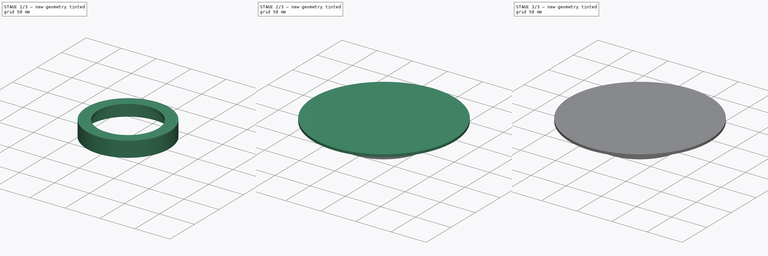
[diagram: build sequence overview — one tinted view per stage of 3, left to right]
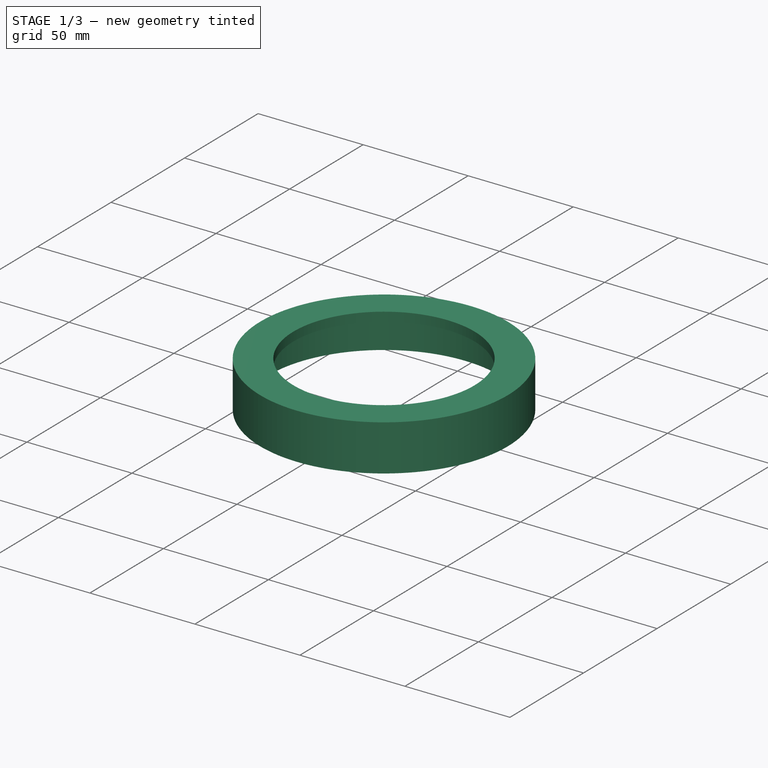
[diagram: stage 1 of 3 — iso view after this stage's code; geometry added in this stage tinted green]
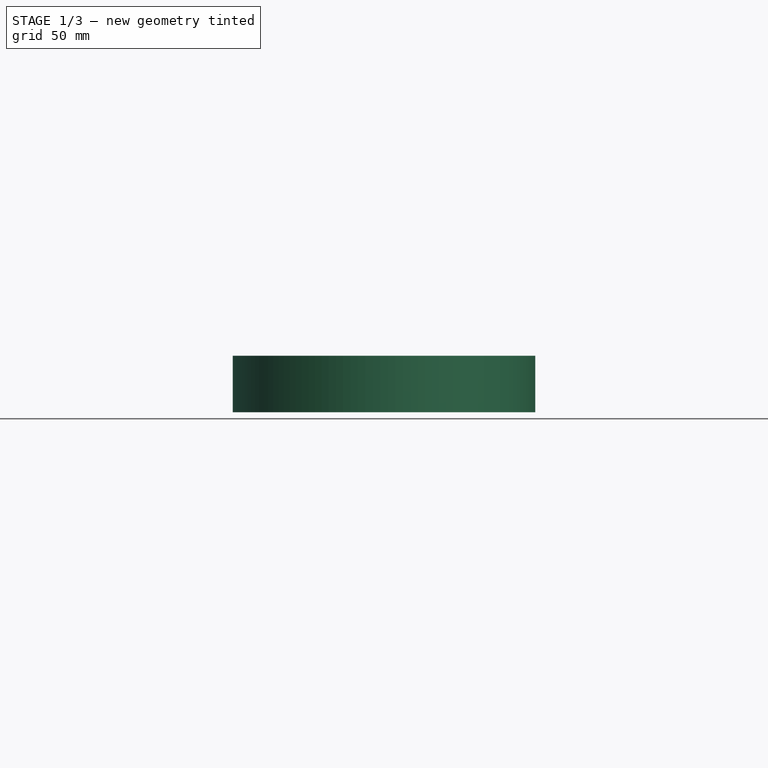
[diagram: stage 1 of 3 — front view after this stage's code; geometry added in this stage tinted green]
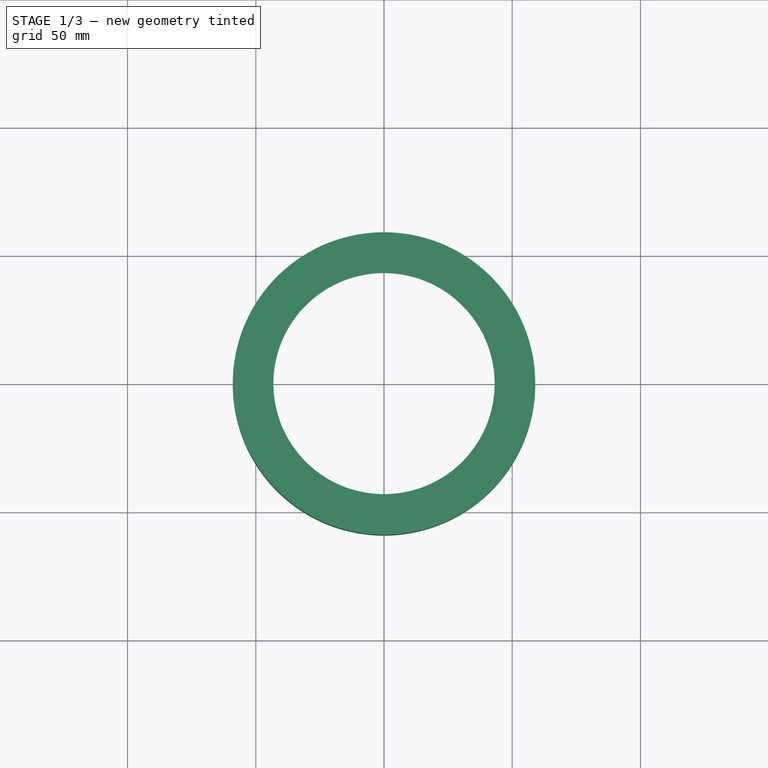
[diagram: stage 1 of 3 — top view after this stage's code; geometry added in this stage tinted green]
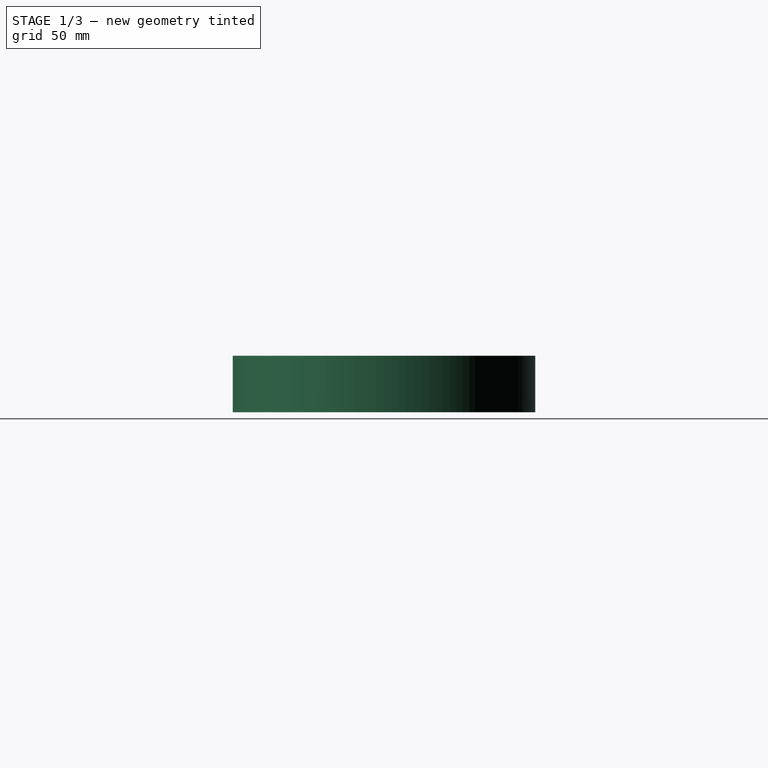
[diagram: stage 1 of 3 — right view after this stage's code; geometry added in this stage tinted green]
FCSTD DOCUMENT  (FreeCAD 1.1R20260414 (Git shallow))
Label: Вращающаяся платформа(верх)
License: All rights reserved
LicenseURL: https://en.wikipedia.org/wiki/All_rights_reserved
objects: Sketcher::SketchObject×7, PartDesign::Pad×3, App::Point×2, PartDesign::Revolution×2, PartDesign::SubShapeBinder×2, PartDesign::Body×2, PartDesign::PolarPattern×2, Part::DatumPlane×1
note: 37 computed .brp shape members not serialized (recipe doc carries the construction recipe); baked Part::Feature solids carry a one-line shape summary decoded from their .brp

FEATURE [App::Point] Origin001  label="Начало координат"
  Role = Origin
FEATURE [Sketcher::SketchObject] Sketch
  ArcFitTolerance = 1e-06
  AttachmentSupport = -> [Origin]
  ExternalTypes = [0]
  FullyConstrained = false
  MakeInternals = false
  MapMode = 5
  Placement = pos=(0,0,0) rot=(1,0,0;1.5708rad)
  _ExternalGeoVersion = 0
  expr: Constraints[7] = 60 / 2
  expr: Constraints[8] = 110 / 2
  sketch-geometry (13):
    g0: LineSegment StartX=30 StartY=22 StartZ=0 EndX=30 EndY=0 EndZ=0
    g1: LineSegment StartX=30 StartY=0 StartZ=0 EndX=36.7998 EndY=0 EndZ=0
    g2: LineSegment StartX=55 StartY=0 StartZ=0 EndX=55 EndY=22 EndZ=0
    g3: LineSegment StartX=55 StartY=22 StartZ=0 EndX=49.5 EndY=22 EndZ=0
    g4: LineSegment StartX=36.7998 StartY=22 StartZ=0 EndX=37.1499 EndY=21.5 EndZ=0
    g5: LineSegment StartX=37.1499 StartY=21.5 StartZ=0 EndX=49.1499 EndY=21.5 EndZ=0
    g6: LineSegment StartX=49.1499 StartY=21.5 StartZ=0 EndX=49.5 EndY=22 EndZ=0
    g7: LineSegment StartX=36.7998 StartY=0 StartZ=0 EndX=37.1499 EndY=0.5 EndZ=0
    g8: LineSegment StartX=37.1499 StartY=0.5 StartZ=0 EndX=49.1499 EndY=0.5 EndZ=0
    g9: LineSegment StartX=49.1499 StartY=0.5 StartZ=0 EndX=49.5 EndY=0 EndZ=0
    g10: LineSegment [constr] StartX=35.4638 StartY=11 StartZ=0 EndX=50.0673 EndY=11 EndZ=0
    g11: LineSegment StartX=36.7998 StartY=22 StartZ=0 EndX=30 EndY=22 EndZ=0
    g12: LineSegment StartX=49.5 StartY=0 StartZ=0 EndX=55 EndY=0 EndZ=0
  constraints (34):
    c: Coincident(g0,g1)
    c: Coincident(g12,g2)
    c: Coincident(g2,g3)
    c: Coincident(g11,g0)
    c: Vertical(g0)
    c: Vertical(g2)
    c: DistanceY(g2,g2) = 22
    c: Distance(g-1,g0) = 30
    c: DistanceX(g-1,g2) = 55
    c: PointOnObject(g0,g-1)
    c: Coincident(g4,g5)
    c: Horizontal(g5)
    c: Coincident(g5,g6)
    c: Coincident(g7,g8)
    c: Horizontal(g8)
    c: Coincident(g8,g9)
    c: Symmetric(g4,g7,g10)
    c: Symmetric(g8,g5,g10)
    c: DistanceY(g4,g4) = 0.5
    c: Equal(g4,g7)
    c: Parallel(g6,g7)
    c: Parallel(g9,g4)
    c: DistanceX(g6,g2) = 5.5
    c: DistanceX(g5,g5) = 12
    c: Equal(g9,g4)
    c: Angle(g6,g5) = 2.18166
    c: Horizontal(g3)
    c: Horizontal(g11)
    c: Coincident(g4,g11)
    c: Coincident(g6,g3)
    c: Horizontal(g1)
    c: Horizontal(g12)
    c: Coincident(g7,g1)
    c: Coincident(g9,g12)
FEATURE [PartDesign::Revolution] Revolution
  Angle = 360
  Angle2 = 60
  Axis = (0,2e-16,1)
  Base = (0,0,0)
  FuseOrder = 0
  Profile = -> Sketch
  ReferenceAxis = -> Sketch [V_Axis]
  Refine = true
  Reversed = true
  Suppressed = false
  Type = 0
FEATURE [App::Point] Origin003  label="Начало координат002"
  Role = Origin
FEATURE [PartDesign::SubShapeBinder] Binder
  BindCopyOnChange = 0
  BindMode = 0
  ClaimChildren = false
  Context = -> Body001 [Binder.]
  Fuse = false
  MakeFace = true
  OffsetFill = false
  OffsetIntersection = false
  OffsetJoinType = 0
  OffsetOpenResult = false
  PartialLoad = false
  Refine = true
  Relative = true
  Support = -> [Body[Revolution.Edge15,Revolution.Edge14,Revolution.Edge12,Revolution.Edge11]]
  _Version = 2
FEATURE [PartDesign::SubShapeBinder] Binder001
  BindCopyOnChange = 0
  BindMode = 0
  ClaimChildren = false
  Context = -> Body001 [Binder001.]
  Fuse = false
  MakeFace = true
  OffsetFill = false
  OffsetIntersection = false
  OffsetJoinType = 0
  OffsetOpenResult = false
  PartialLoad = false
  Refine = true
  Relative = true
  Support = -> [Body[Revolution.Edge17,Revolution.Edge1]]
  _Version = 2
FEATURE [Sketcher::SketchObject] Sketch001
  ArcFitTolerance = 1e-06
  AttachmentSupport = -> [Origin002]
  ExternalGeometry = -> [Binder,Binder001]
  ExternalTypes = [0,0,0,0,0]
  FullyConstrained = true
  MakeInternals = false
  MapMode = 5
  Placement = pos=(0,0,0) rot=(1,0,0;1.5708rad)
  _ExternalGeoVersion = 0
  sketch-geometry (9):
    g0: LineSegment StartX=55 StartY=4 StartZ=0 EndX=55 EndY=22 EndZ=0
    g1: LineSegment StartX=55 StartY=22 StartZ=0 EndX=49.5 EndY=22 EndZ=0
    g2: LineSegment StartX=49.5 StartY=22 StartZ=0 EndX=49.3249 EndY=21.75 EndZ=0
    g3: LineSegment StartX=49.3249 StartY=21.75 StartZ=0 EndX=43.1499 EndY=21.75 EndZ=0
    g4: GeomPoint [constr] X=43.1499 Y=22 Z=0
    g5: LineSegment StartX=55 StartY=4 StartZ=0 EndX=59 EndY=4 EndZ=0
    g6: LineSegment StartX=59 StartY=4 StartZ=0 EndX=59 EndY=26 EndZ=0
    g7: LineSegment StartX=43.1499 StartY=21.75 StartZ=0 EndX=43.1499 EndY=26 EndZ=0
    g8: LineSegment StartX=43.1499 StartY=26 StartZ=0 EndX=59 EndY=26 EndZ=0
  constraints (23):
    c: Coincident(g0,g-5)
    c: Vertical(g0)
    c: Coincident(g0,g1)
    c: Coincident(g1,g-4)
    c: Coincident(g1,g2)
    c: DistanceY(g-3,g2) = 0.25
    c: Angle(g2,g-3) = 2.18166
    c: Coincident(g2,g3)
    c: Horizontal(g3)
    c: Vertical(g3,g4)
    c: Symmetric(g-7,g1,g4)
    c: DistanceY(g-6,g0) = 4
    c: Coincident(g0,g5)
    c: Coincident(g5,g6)
    c: Vertical(g6)
    c: Coincident(g3,g7)
    c: Vertical(g7)
    c: Coincident(g7,g8)
    c: Horizontal(g8)
    c: DistanceX(g5,g5) = 4
    c: Horizontal(g5)
    c: Coincident(g6,g8)
    c: DistanceY(g0,g6) = 4
FEATURE [PartDesign::Revolution] Revolution001
  Angle = 360
  Angle2 = 60
  Axis = (0,2e-16,1)
  Base = (0,0,0)
  FuseOrder = 0
  Profile = -> Sketch001
  ReferenceAxis = -> Sketch001 [V_Axis]
  Refine = true
  Reversed = true
  Suppressed = false
  Type = 0
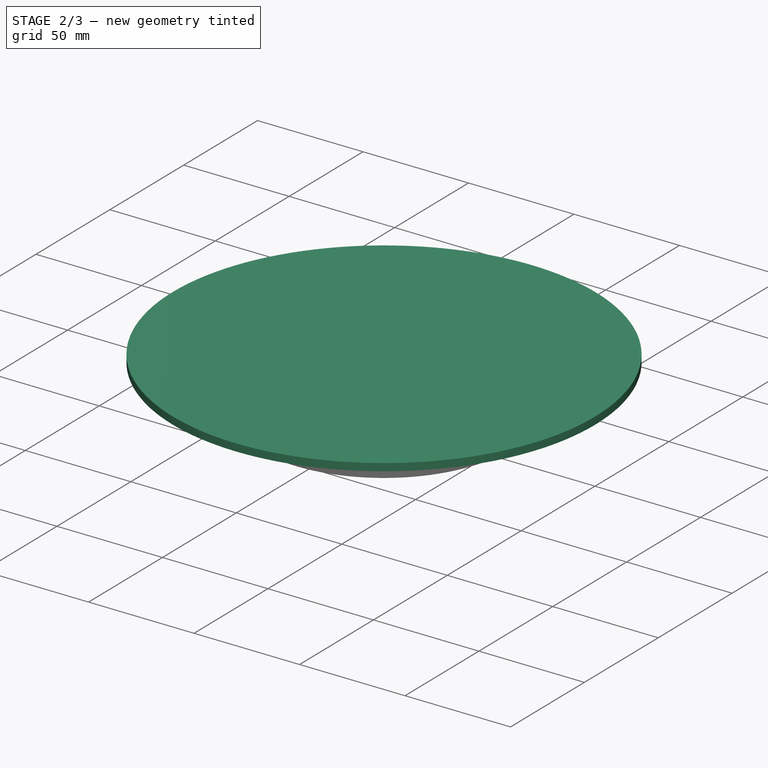
[diagram: stage 2 of 3 — iso view after this stage's code; geometry added in this stage tinted green]
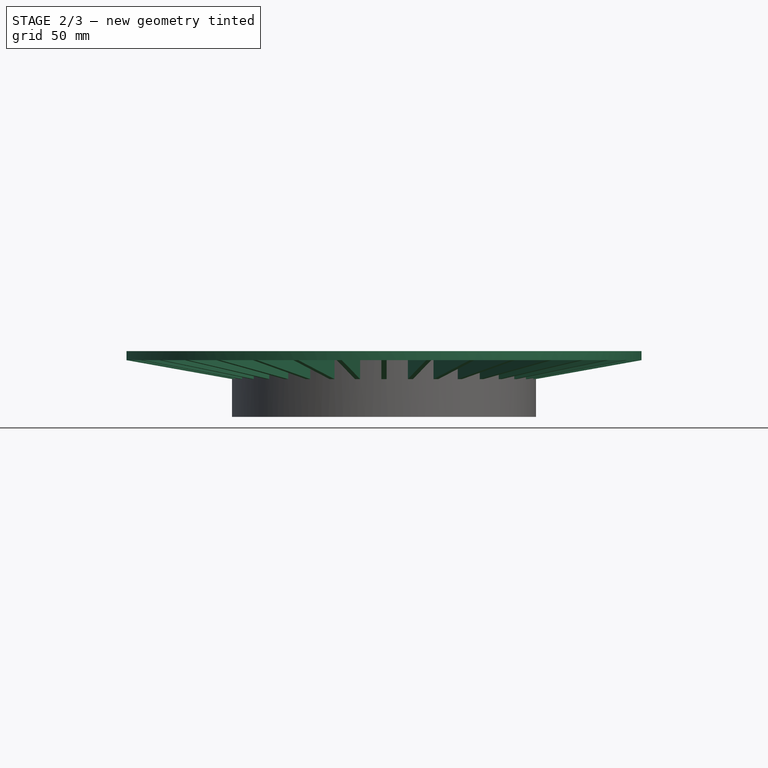
[diagram: stage 2 of 3 — front view after this stage's code; geometry added in this stage tinted green]
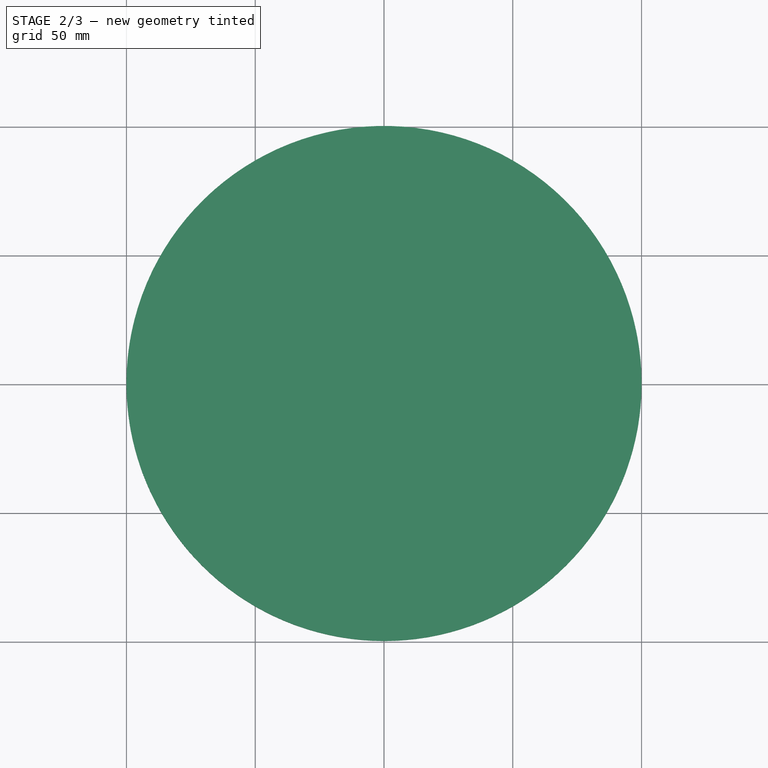
[diagram: stage 2 of 3 — top view after this stage's code; geometry added in this stage tinted green]
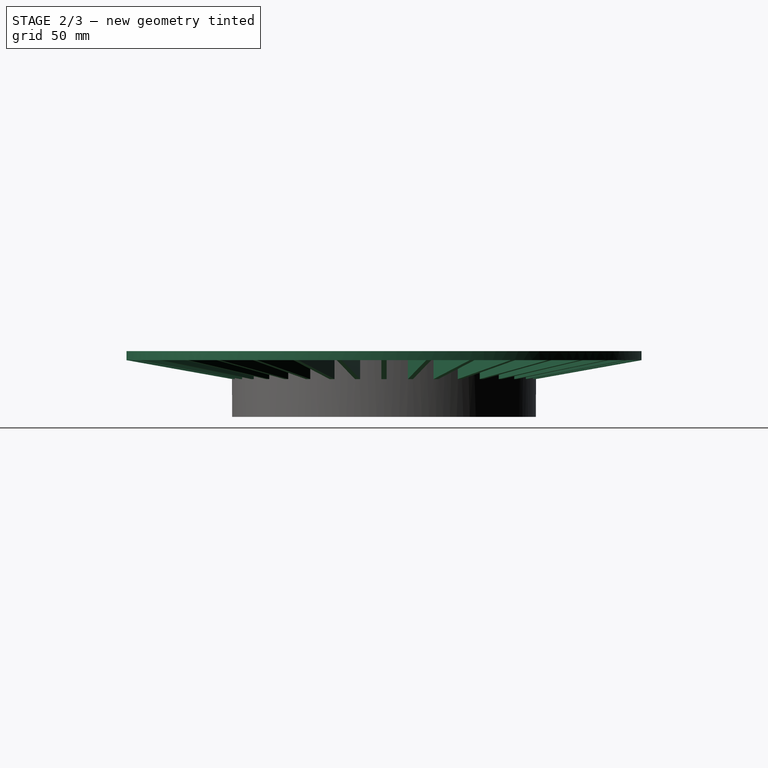
[diagram: stage 2 of 3 — right view after this stage's code; geometry added in this stage tinted green]
FEATURE [Sketcher::SketchObject] Sketch004
  ArcFitTolerance = 1e-06
  AttachmentSupport = -> [Origin]
  ExternalTypes = [0]
  FullyConstrained = true
  MakeInternals = false
  MapMode = 5
  Placement = pos=(0,0,0) rot=(1,0,0;1.5708rad)
  _ExternalGeoVersion = 0
FEATURE [Sketcher::SketchObject] Sketch005
  ArcFitTolerance = 1e-06
  AttachmentSupport = -> [Origin]
  ExternalTypes = [0]
  FullyConstrained = true
  MakeInternals = false
  MapMode = 5
  Placement = pos=(0,0,0) rot=(1,0,0;1.5708rad)
  _ExternalGeoVersion = 0
FEATURE [PartDesign::Body] Body  label="Тело"
  AllowCompound = false
  Group = -> [Sketch,Revolution,Sketch004,Sketch005]
  Origin = -> Origin
  Tip = -> Revolution
FEATURE [Part::DatumPlane] DatumPlane
  AttachmentSupport = -> [Revolution001]
  MapMode = 5
  Placement = pos=(0,5.7e-15,26) rot=(0,0,1;0rad)
FEATURE [Sketcher::SketchObject] Sketch002
  ArcFitTolerance = 1e-06
  AttachmentSupport = -> [DatumPlane]
  ExternalTypes = [0]
  FullyConstrained = true
  MakeInternals = false
  MapMode = 5
  Placement = pos=(0,5.7e-15,26) rot=(0,0,1;0rad)
  _ExternalGeoVersion = 0
  sketch-geometry (1):
    g0: Circle CenterX=0 CenterY=0 CenterZ=0 NormalX=0 NormalY=0 NormalZ=1 AngleXU=0 Radius=100
  constraints (2):
    c: Coincident(g0,g-1)
    c: Diameter(g0) = 200
FEATURE [PartDesign::Pad] Pad
  BaseFeature = -> Revolution001
  Direction = (0,0,1)
  Length = 3.5
  Length2 = 10
  Profile = -> Sketch002
  ReferenceAxis = -> Sketch002 [N_Axis]
  Refine = true
  SideType = 0
  Suppressed = false
  Type = 0
  Type2 = 0
  UseCustomVector = true
FEATURE [Sketcher::SketchObject] Sketch003
  ArcFitTolerance = 1e-06
  AttachmentSupport = -> [Origin002]
  ExternalGeometry = -> [Pad]
  ExternalTypes = [0,0]
  FullyConstrained = true
  MakeInternals = false
  MapMode = 5
  Placement = pos=(0,0,0) rot=(1,0,0;1.5708rad)
  _ExternalGeoVersion = 0
  sketch-geometry (8):
    g0: LineSegment StartX=56 StartY=26 StartZ=0 EndX=59 EndY=26 EndZ=0
    g1: LineSegment StartX=59 StartY=26 StartZ=0 EndX=100 EndY=26 EndZ=0
    g2: LineSegment StartX=100 StartY=26 StartZ=0 EndX=59 EndY=18.6667 EndZ=0
    g3: LineSegment StartX=59 StartY=18.6667 StartZ=0 EndX=56 EndY=18.6667 EndZ=0
    g4: LineSegment StartX=56 StartY=18.6667 StartZ=0 EndX=56 EndY=26 EndZ=0
    g5: LineSegment [constr] StartX=59 StartY=26 StartZ=0 EndX=59 EndY=18.6667 EndZ=0
    g6: LineSegment [constr] StartX=59 StartY=18.6667 StartZ=0 EndX=59 EndY=11.3333 EndZ=0
    g7: LineSegment [constr] StartX=59 StartY=11.3333 StartZ=0 EndX=59 EndY=4 EndZ=0
  constraints (20):
    c: Coincident(g0,g-3)
    c: Coincident(g0,g1)
    c: Coincident(g1,g2)
    c: Horizontal(g3)
    c: Coincident(g3,g4)
    c: Coincident(g4,g0)
    c: Equal(g0,g3)
    c: Horizontal(g0)
    c: Coincident(g1,g-4)
    c: Coincident(g3,g2)
    c: Coincident(g5,g6)
    c: Coincident(g6,g7)
    c: Coincident(g7,g-3)
    c: Coincident(g5,g0)
    c: PointOnObject(g5,g-3)
    c: Equal(g7,g6)
    c: Equal(g5,g6)
    c: Coincident(g2,g5)
    c: PointOnObject(g6,g-3)
    c: DistanceX(g3,g3) = 3
FEATURE [PartDesign::Pad] Pad001
  BaseFeature = -> Pad
  Direction = (0,-1,2e-16)
  Length = 2
  Length2 = 1
  Profile = -> Sketch003
  ReferenceAxis = -> Sketch003 [N_Axis]
  Refine = true
  Reversed = true
  SideType = 2
  Suppressed = false
  Type = 0
  Type2 = 0
FEATURE [PartDesign::PolarPattern] PolarPattern
  Angle = 360
  Axis = -> Z_Axis001
  BaseFeature = -> Pad001
  Mode = 0
  Occurrences = 36
  Offset = 120
  Originals = -> [Pad001]
  Refine = true
  SpacingPattern = [0]
  Spacings = [-1,-1,-1,-1,-1,-1,-1,-1,-1,-1,-1,-1,-1,-1,-1,-1,-1,-1,-1,-1,-1,-1,-1,-1,-1,-1,-1,-1,-1,-1,-1,-1,-1,-1,-1]
  Suppressed = false
  TransformMode = 0
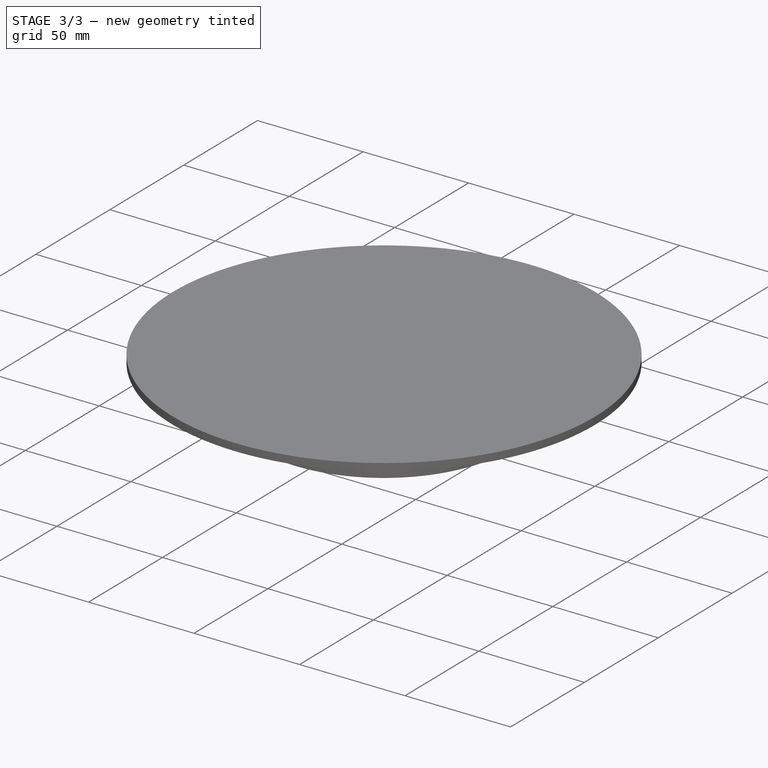
[diagram: stage 3 of 3 — iso view after this stage's code; geometry added in this stage tinted green]
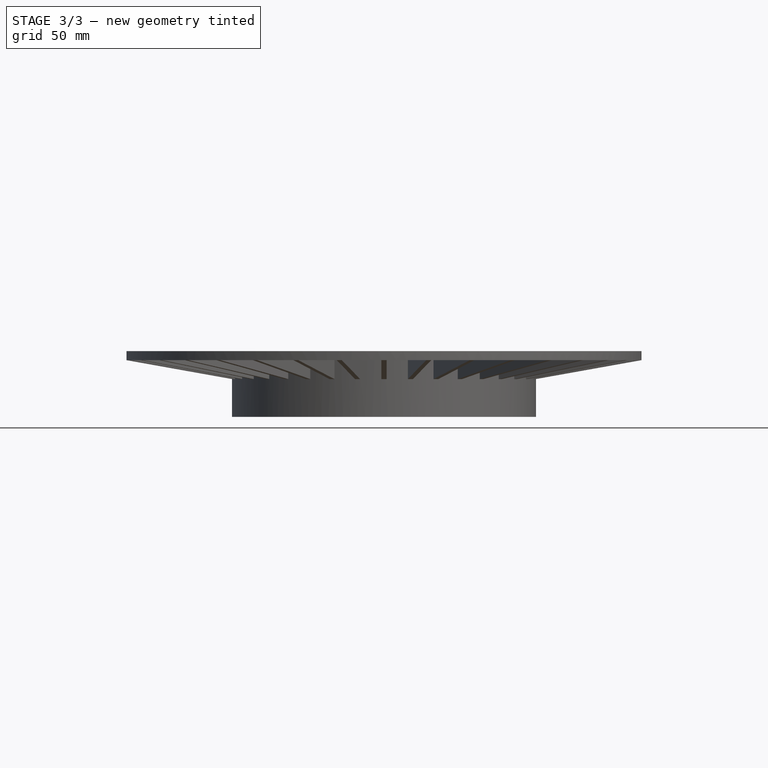
[diagram: stage 3 of 3 — front view after this stage's code; geometry added in this stage tinted green]
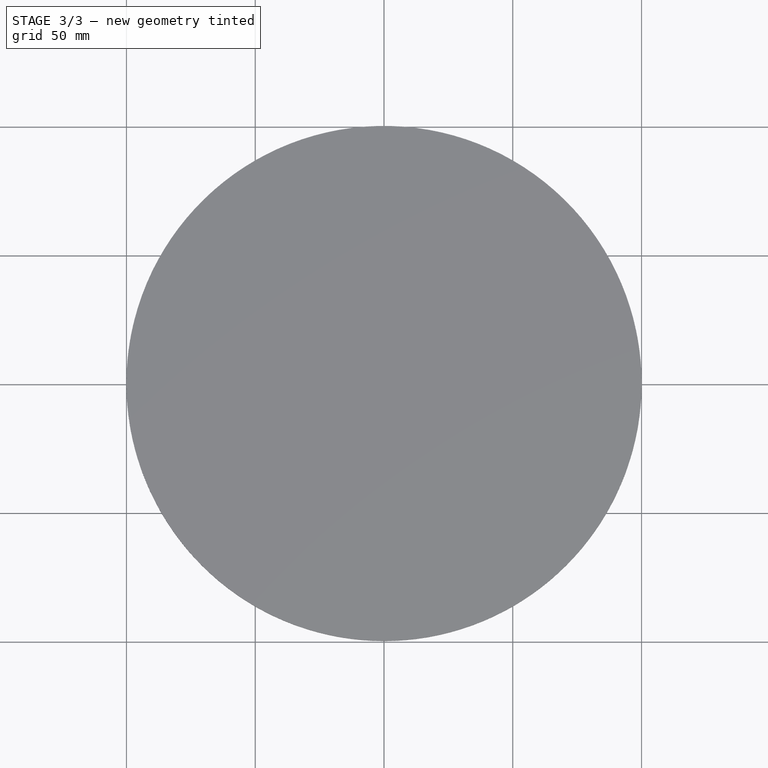
[diagram: stage 3 of 3 — top view after this stage's code; geometry added in this stage tinted green]
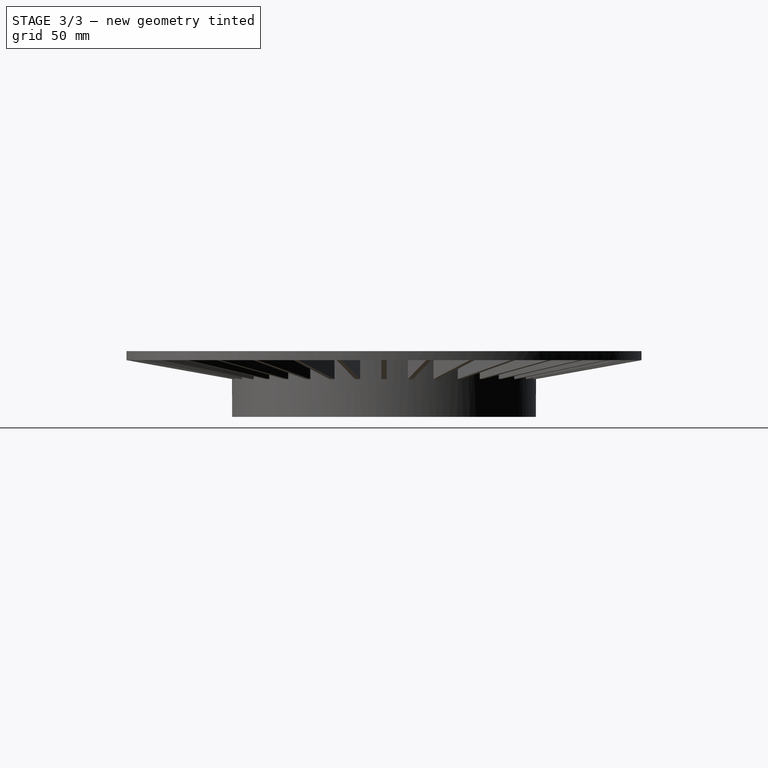
[diagram: stage 3 of 3 — right view after this stage's code; geometry added in this stage tinted green]
FEATURE [Sketcher::SketchObject] Sketch006
  ArcFitTolerance = 1e-06
  AttachmentSupport = -> [Origin002]
  ExternalGeometry = -> [PolarPattern]
  ExternalTypes = [0,0]
  FullyConstrained = false
  MakeInternals = false
  MapMode = 5
  Placement = pos=(0,0,0) rot=(1,0,0;1.5708rad)
  _ExternalGeoVersion = 0
  sketch-geometry (7):
    g0: LineSegment StartX=-43.1499 StartY=26 StartZ=0 EndX=-43.1499 EndY=23.1667 EndZ=0
    g1: LineSegment StartX=-43.1499 StartY=23.1667 StartZ=0 EndX=-29.3113 EndY=23.1667 EndZ=0
    g2: LineSegment StartX=-43.1499 StartY=26 StartZ=0 EndX=0 EndY=26 EndZ=0
    g3: LineSegment [constr] StartX=-43.1499 StartY=26 StartZ=0 EndX=-43.1499 EndY=24.5833 EndZ=0
    g4: LineSegment [constr] StartX=-43.1499 StartY=24.5833 StartZ=0 EndX=-43.1499 EndY=23.1667 EndZ=0
    g5: LineSegment [constr] StartX=-43.1499 StartY=23.1667 StartZ=0 EndX=-43.1499 EndY=21.75 EndZ=0
    g6: LineSegment StartX=-29.3113 StartY=23.1667 StartZ=0 EndX=0 EndY=26 EndZ=0
  constraints (16):
    c: Coincident(g0,g1)
    c: Horizontal(g1)
    c: Horizontal(g2)
    c: Coincident(g2,g0)
    c: Coincident(g3,g4)
    c: Coincident(g4,g5)
    c: Coincident(g0,g4)
    c: Equal(g3,g4)
    c: Equal(g4,g5)
    c: Coincident(g-3,g5)
    c: Coincident(g3,g-4)
    c: Vertical(g5)
    c: Vertical(g3)
    c: Coincident(g0,g3)
    c: Coincident(g6,g1)
    c: Coincident(g6,g2)
FEATURE [PartDesign::Pad] Pad002
  BaseFeature = -> PolarPattern
  Direction = (0,-1,2e-16)
  Length = 1.5
  Length2 = 1.5
  Profile = -> Sketch006
  ReferenceAxis = -> Sketch006 [N_Axis]
  Refine = true
  Reversed = true
  SideType = 1
  Suppressed = false
  Type = 0
  Type2 = 0
FEATURE [PartDesign::PolarPattern] PolarPattern001
  Angle = 360
  Axis = -> Z_Axis001
  BaseFeature = -> Pad002
  Mode = 0
  Occurrences = 22
  Offset = 120
  Originals = -> [Pad002]
  Refine = true
  SpacingPattern = [0]
  Spacings = [-1,-1,-1,-1,-1,-1,-1,-1,-1,-1,-1,-1,-1,-1,-1,-1,-1,-1,-1,-1,-1]
  Suppressed = false
  TransformMode = 0
FEATURE [PartDesign::Body] Body001  label="Тело001"
  AllowCompound = false
  Group = -> [Binder001,Binder,Sketch001,Revolution001,Sketch002,DatumPlane,Pad,Sketch003,Pad001,PolarPattern,Sketch006,Pad002,PolarPattern001]
  Origin = -> Origin002
  Tip = -> PolarPattern001
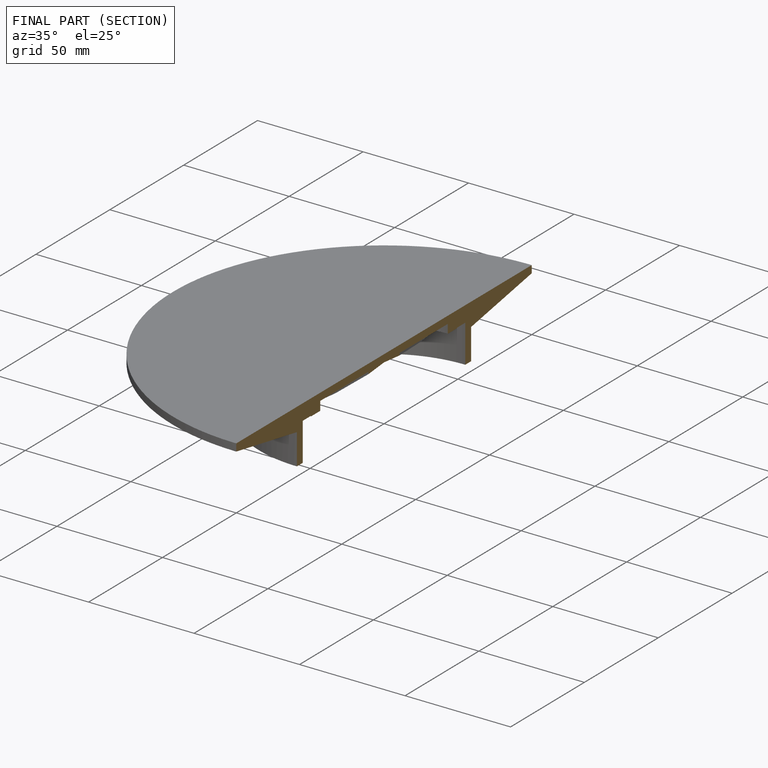
[diagram: finished part — half-section view (interior)]
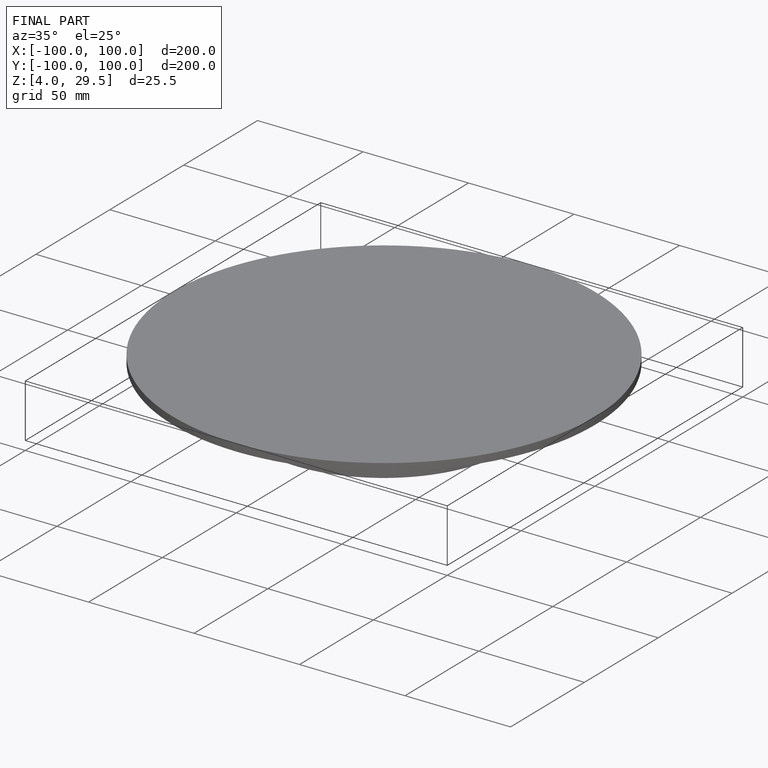
[diagram: finished part — iso view with bounding-box wireframe]
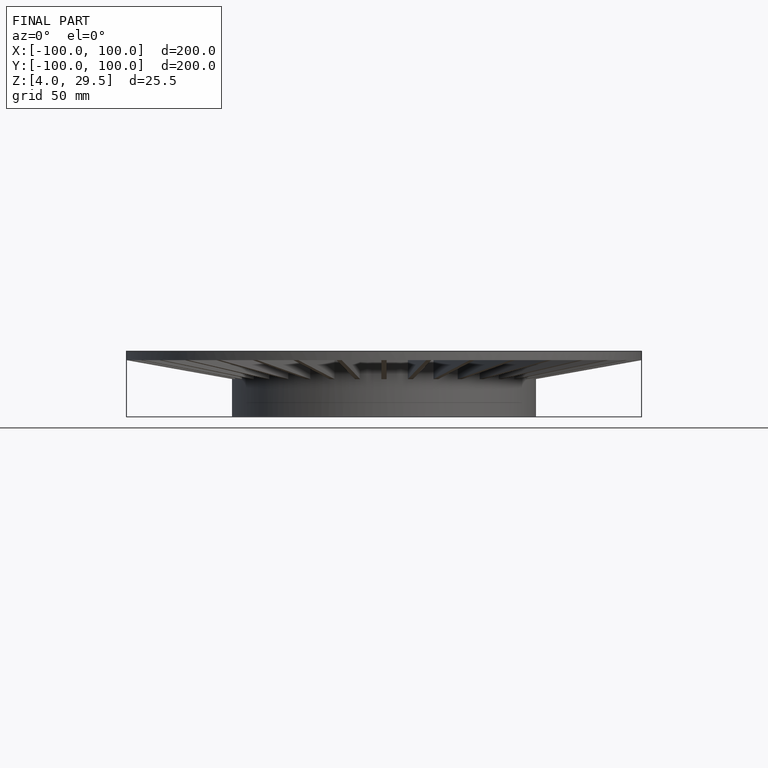
[diagram: finished part — front view with bounding-box wireframe]
